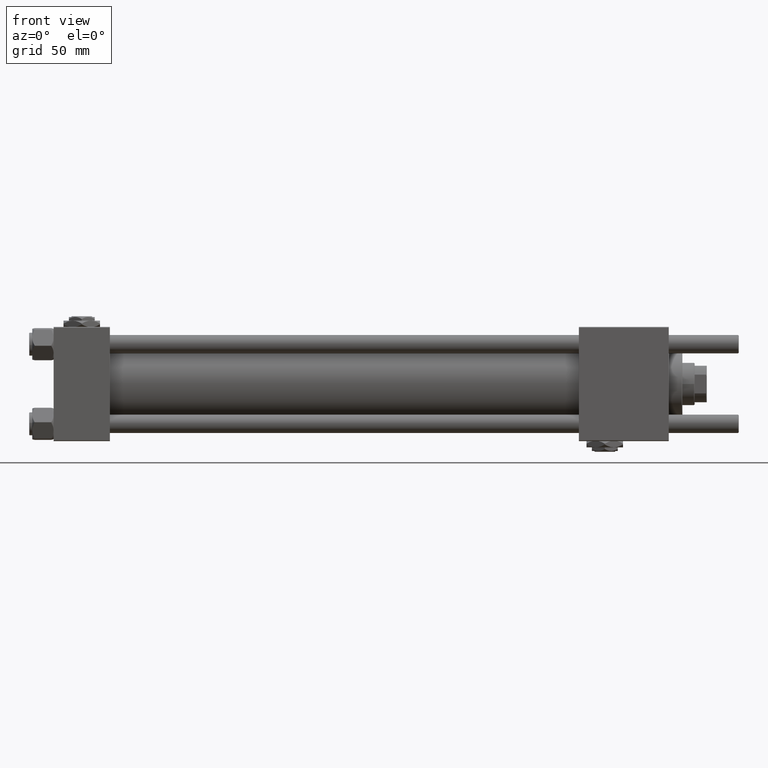
[diagram: clean part render]
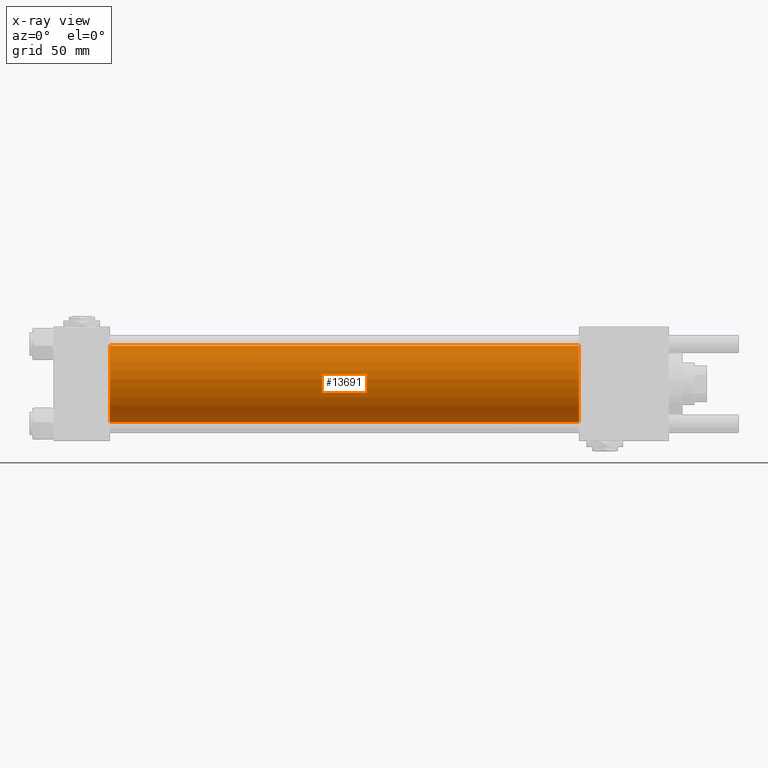
[diagram: x-ray — body ghosted, one internal face saturated and labeled with its STEP entity id]
A machine part, front view, then the same camera in x-ray: the body is ghosted and one INTERNAL B-rep face — a face not visible from any outside direction — is saturated and labeled: STEP entity #13691.
In plain terms, the highlighted cylindrical surface (partial cylindrical patch) has radius 25 mm, axis along (-1, -0, -0).
Its self-contained STEP definition (entity closure, byte-faithful):
#425 = CIRCLE ( 'NONE', #53516, 25.00000000000000000 ) ;
#1267 = DIRECTION ( 'NONE',  ( 0.000000000000000000, 0.000000000000000000, -1.000000000000000000 ) ) ;
#1490 = ORIENTED_EDGE ( 'NONE', *, *, #13051, .F. ) ;
#3323 = VECTOR ( 'NONE', #53999, 1000.000000000000000 ) ;
#4039 = DIRECTION ( 'NONE',  ( 1.000000000000000000, 0.000000000000000000, 0.000000000000000000 ) ) ;
#4516 = VERTEX_POINT ( 'NONE', #8313 ) ;
#8087 = AXIS2_PLACEMENT_3D ( 'NONE', #48403, #57900, #57617 ) ;
#8313 = CARTESIAN_POINT ( 'NONE',  ( 345.0000000000000000, 4.595317839031724996E-16, -25.00000000000000000 ) ) ;
#8882 = CYLINDRICAL_SURFACE ( 'NONE', #8087, 25.00000000000000000 ) ;
#9380 = CARTESIAN_POINT ( 'NONE',  ( 37.00000000000000000, -2.602085213965210642E-15, 0.000000000000000000 ) ) ;
#13051 = EDGE_CURVE ( 'NONE', #40463, #45554, #22788, .T. ) ;
#13266 = EDGE_CURVE ( 'NONE', #45554, #39361, #32719, .T. ) ;
#13691 = ADVANCED_FACE ( 'NONE', ( #54026 ), #8882, .F. ) ;
#15189 = DIRECTION ( 'NONE',  ( 1.000000000000000000, 0.000000000000000000, 0.000000000000000000 ) ) ;
#16613 = AXIS2_PLACEMENT_3D ( 'NONE', #9380, #4039, #41460 ) ;
#17179 = CARTESIAN_POINT ( 'NONE',  ( 37.00000000000000000, 4.595317839031724996E-16, -25.00000000000000000 ) ) ;
#19641 = CARTESIAN_POINT ( 'NONE',  ( 345.0000000000000000, -2.602085213965210642E-15, 0.000000000000000000 ) ) ;
#22788 = LINE ( 'NONE', #31995, #3323 ) ;
#26267 = ORIENTED_EDGE ( 'NONE', *, *, #28412, .T. ) ;
#26595 = LINE ( 'NONE', #45062, #42076 ) ;
#28412 = EDGE_CURVE ( 'NONE', #4516, #39361, #26595, .T. ) ;
#31995 = CARTESIAN_POINT ( 'NONE',  ( 345.0000000000000000, -2.602085213965210642E-15, 25.00000000000000000 ) ) ;
#32719 = CIRCLE ( 'NONE', #16613, 25.00000000000000000 ) ;
#35972 = EDGE_CURVE ( 'NONE', #40463, #4516, #425, .T. ) ;
#36817 = EDGE_LOOP ( 'NONE', ( #56691, #26267, #46087, #1490 ) ) ;
#39361 = VERTEX_POINT ( 'NONE', #17179 ) ;
#40030 = CARTESIAN_POINT ( 'NONE',  ( 37.00000000000000000, -2.602085213965210642E-15, 25.00000000000000000 ) ) ;
#40463 = VERTEX_POINT ( 'NONE', #46320 ) ;
#40577 = DIRECTION ( 'NONE',  ( -1.000000000000000000, -0.000000000000000000, -0.000000000000000000 ) ) ;
#41460 = DIRECTION ( 'NONE',  ( 0.000000000000000000, 0.000000000000000000, -1.000000000000000000 ) ) ;
#42076 = VECTOR ( 'NONE', #40577, 1000.000000000000000 ) ;
#45062 = CARTESIAN_POINT ( 'NONE',  ( 345.0000000000000000, 4.595317839031724996E-16, -25.00000000000000000 ) ) ;
#45554 = VERTEX_POINT ( 'NONE', #40030 ) ;
#46087 = ORIENTED_EDGE ( 'NONE', *, *, #13266, .F. ) ;
#46320 = CARTESIAN_POINT ( 'NONE',  ( 345.0000000000000000, -2.602085213965210642E-15, 25.00000000000000000 ) ) ;
#48403 = CARTESIAN_POINT ( 'NONE',  ( 345.0000000000000000, -2.602085213965210642E-15, 0.000000000000000000 ) ) ;
#53516 = AXIS2_PLACEMENT_3D ( 'NONE', #19641, #15189, #1267 ) ;
#53999 = DIRECTION ( 'NONE',  ( -1.000000000000000000, -0.000000000000000000, -0.000000000000000000 ) ) ;
#54026 = FACE_OUTER_BOUND ( 'NONE', #36817, .T. ) ;
#56691 = ORIENTED_EDGE ( 'NONE', *, *, #35972, .T. ) ;
#57617 = DIRECTION ( 'NONE',  ( 0.000000000000000000, 0.000000000000000000, 1.000000000000000000 ) ) ;
#57900 = DIRECTION ( 'NONE',  ( -1.000000000000000000, -0.000000000000000000, -0.000000000000000000 ) ) ;